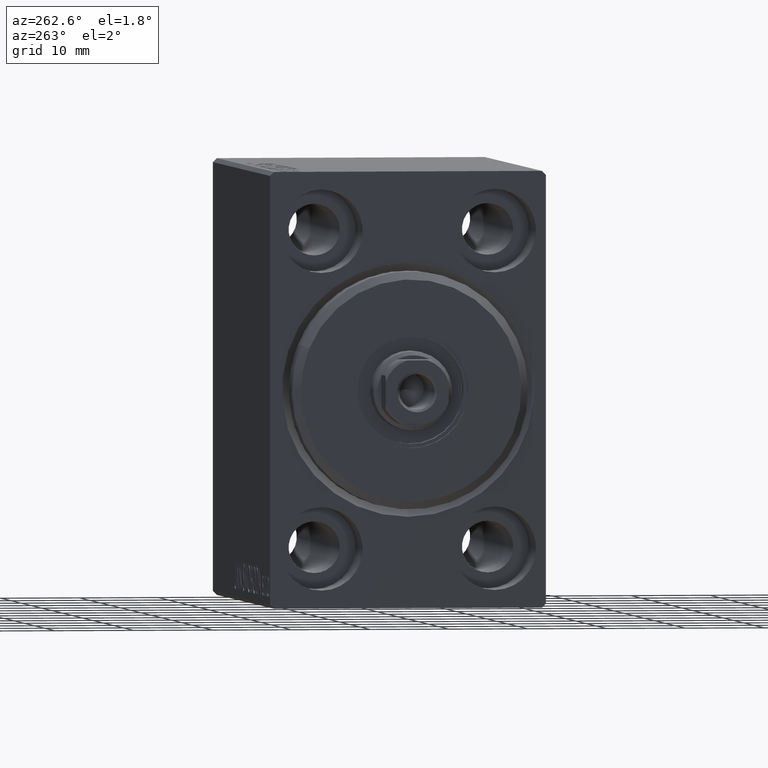
[diagram: clean part render]
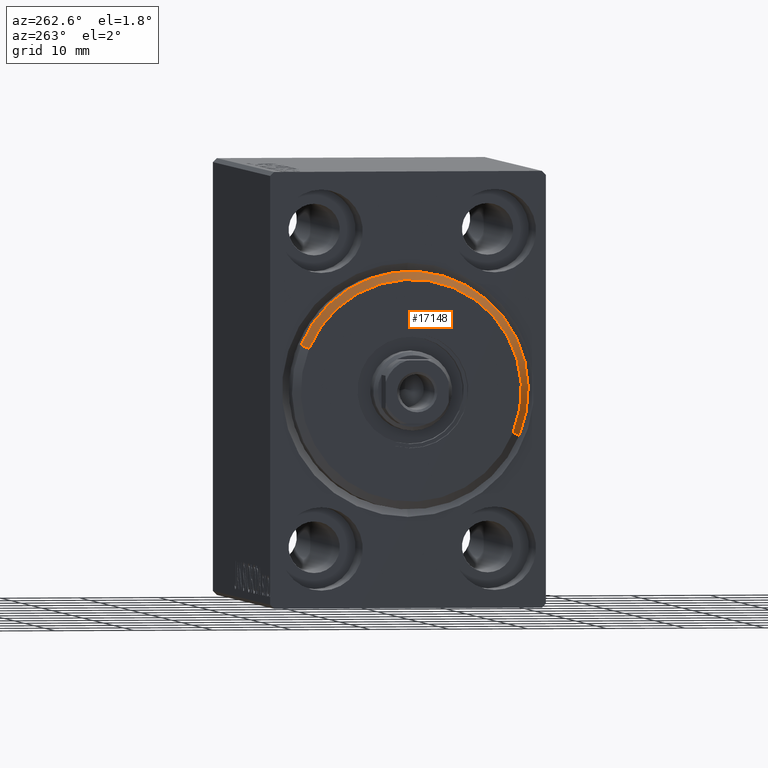
[diagram: same view with one face highlighted and labeled with its STEP entity id]
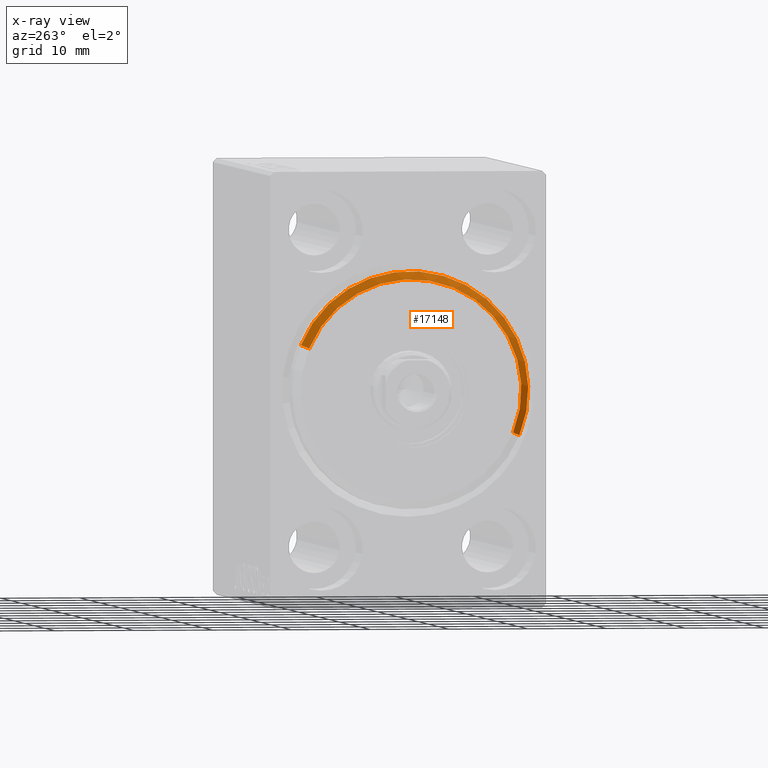
[diagram: x-ray of the same camera — body ghosted, the highlighted face saturated]
A machine part, auxiliary view. The second image highlights one B-rep face of the part: STEP entity #17148.
The next image is the same camera in x-ray: the body ghosted, the highlighted face saturated — about 0% of this face is hidden behind the body in this view.
In plain terms, the highlighted conical surface has half-angle 45 deg.
Its self-contained STEP definition (entity closure, byte-faithful):
#2224 = EDGE_CURVE ( 'NONE', #27639, #40464, #8066, .T. ) ;
#2449 = VECTOR ( 'NONE', #40036, 999.9999999999998863 ) ;
#5318 = CARTESIAN_POINT ( 'NONE',  ( 3.000000000000000000, 0.000000000000000000, 13.99999999999999645 ) ) ;
#6102 = ORIENTED_EDGE ( 'NONE', *, *, #27912, .F. ) ;
#6190 = CARTESIAN_POINT ( 'NONE',  ( 3.000000000000000000, 0.000000000000000000, 0.000000000000000000 ) ) ;
#6632 = DIRECTION ( 'NONE',  ( -1.000000000000000000, 0.000000000000000000, 0.000000000000000000 ) ) ;
#6817 = VERTEX_POINT ( 'NONE', #24367 ) ;
#7570 = ORIENTED_EDGE ( 'NONE', *, *, #30064, .T. ) ;
#8066 = LINE ( 'NONE', #9622, #2449 ) ;
#8875 = EDGE_CURVE ( 'NONE', #40464, #23246, #9674, .T. ) ;
#8884 = CARTESIAN_POINT ( 'NONE',  ( 3.000000000000000000, 1.775737858763662015E-15, -13.99999999999999645 ) ) ;
#9622 = CARTESIAN_POINT ( 'NONE',  ( 3.000000000000000000, 1.714505518806294244E-15, -13.99999999999999645 ) ) ;
#9674 = CIRCLE ( 'NONE', #29517, 15.00000000000000000 ) ;
#10780 = EDGE_LOOP ( 'NONE', ( #38840, #6102, #7570, #26009 ) ) ;
#14596 = CARTESIAN_POINT ( 'NONE',  ( 1.999999999999995781, 0.000000000000000000, 0.000000000000000000 ) ) ;
#17148 = ADVANCED_FACE ( 'NONE', ( #43490 ), #20492, .T. ) ;
#20492 = CONICAL_SURFACE ( 'NONE', #21908, 13.99999999999999645, 0.7853981633974473908 ) ;
#21908 = AXIS2_PLACEMENT_3D ( 'NONE', #6190, #6632, #33255 ) ;
#22159 = DIRECTION ( 'NONE',  ( 0.000000000000000000, 0.000000000000000000, -1.000000000000000000 ) ) ;
#23246 = VERTEX_POINT ( 'NONE', #39208 ) ;
#23718 = DIRECTION ( 'NONE',  ( -1.000000000000000000, 0.000000000000000000, 0.000000000000000000 ) ) ;
#24367 = CARTESIAN_POINT ( 'NONE',  ( 3.000000000000000000, 0.000000000000000000, 13.99999999999999645 ) ) ;
#25045 = DIRECTION ( 'NONE',  ( 1.000000000000000000, -0.000000000000000000, 0.000000000000000000 ) ) ;
#26009 = ORIENTED_EDGE ( 'NONE', *, *, #8875, .F. ) ;
#27639 = VERTEX_POINT ( 'NONE', #8884 ) ;
#27912 = EDGE_CURVE ( 'NONE', #6817, #27639, #39090, .T. ) ;
#28579 = CARTESIAN_POINT ( 'NONE',  ( 3.000000000000000000, 0.000000000000000000, 0.000000000000000000 ) ) ;
#28612 = DIRECTION ( 'NONE',  ( -0.7071067811865482389, 0.000000000000000000, 0.7071067811865469066 ) ) ;
#29517 = AXIS2_PLACEMENT_3D ( 'NONE', #14596, #23718, #34354 ) ;
#29935 = VECTOR ( 'NONE', #28612, 999.9999999999998863 ) ;
#30064 = EDGE_CURVE ( 'NONE', #6817, #23246, #35714, .T. ) ;
#31295 = AXIS2_PLACEMENT_3D ( 'NONE', #28579, #25045, #22159 ) ;
#33255 = DIRECTION ( 'NONE',  ( 0.000000000000000000, 0.000000000000000000, 1.000000000000000000 ) ) ;
#34354 = DIRECTION ( 'NONE',  ( 0.000000000000000000, 0.000000000000000000, -1.000000000000000000 ) ) ;
#35714 = LINE ( 'NONE', #5318, #29935 ) ;
#38840 = ORIENTED_EDGE ( 'NONE', *, *, #2224, .F. ) ;
#39090 = CIRCLE ( 'NONE', #31295, 13.99999999999999645 ) ;
#39208 = CARTESIAN_POINT ( 'NONE',  ( 1.999999999999995781, 0.000000000000000000, 15.00000000000000000 ) ) ;
#40036 = DIRECTION ( 'NONE',  ( -0.7071067811865482389, 8.659560562354926695E-17, -0.7071067811865469066 ) ) ;
#40464 = VERTEX_POINT ( 'NONE', #41659 ) ;
#41659 = CARTESIAN_POINT ( 'NONE',  ( 1.999999999999995781, 1.836970198721029589E-15, -15.00000000000000000 ) ) ;
#43490 = FACE_OUTER_BOUND ( 'NONE', #10780, .T. ) ;